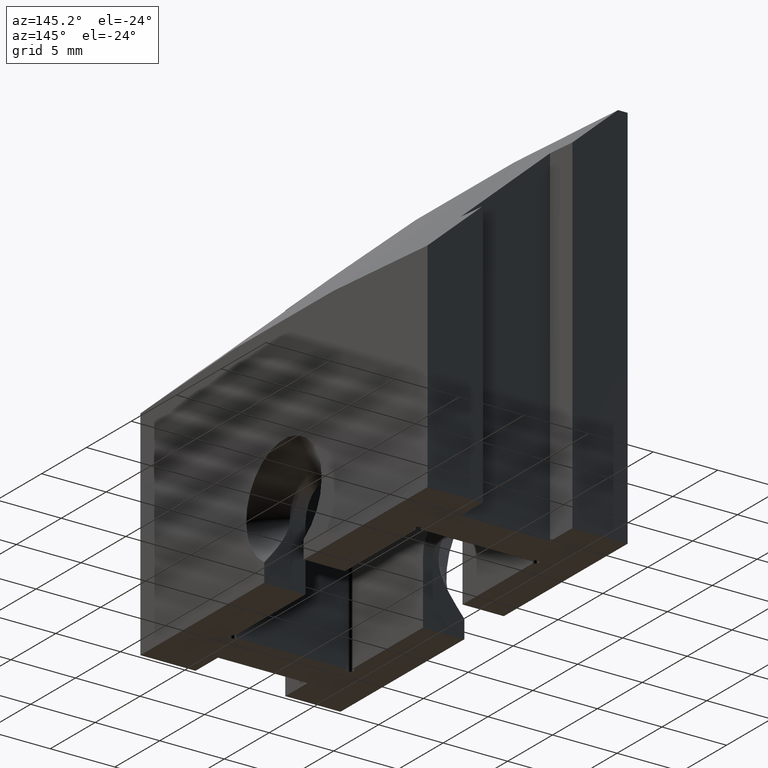
[diagram: clean part render]
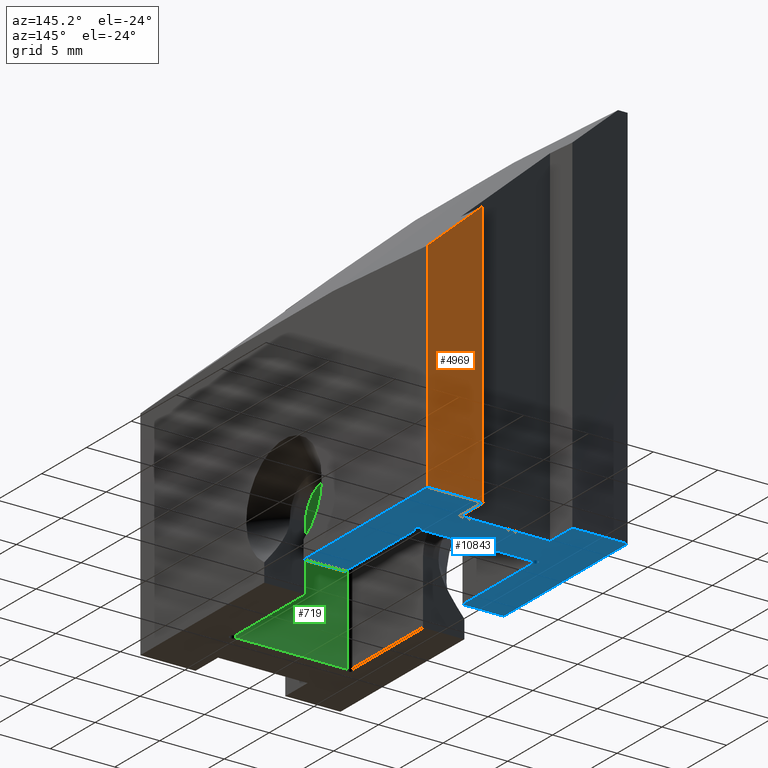
[diagram: same view with three faces highlighted in distinct colors, each labeled with its STEP entity id]
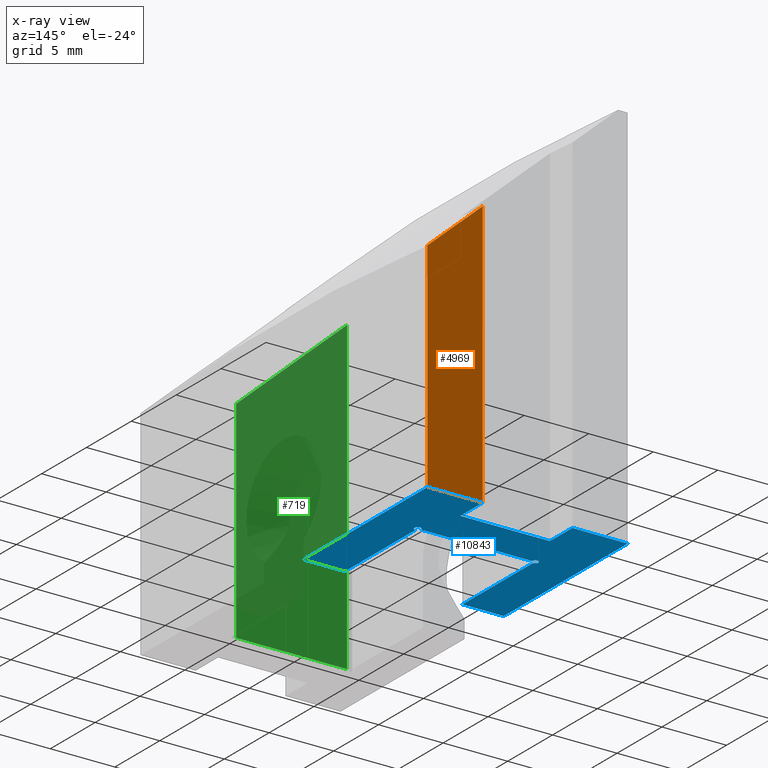
[diagram: x-ray of the same camera — body ghosted, the three highlighted faces saturated]
A machine part, auxiliary view with three faces highlighted in distinct colors.
The next image is the same camera in x-ray (body ghosted, the three faces saturated) — at least one of them is partly hidden behind the body in this view.
Their STEP definitions:

[orange] entity #4969 — the highlighted planar face has unit normal (0, -1, 0).
#380 = CARTESIAN_POINT ( 'NONE',  ( -7.417642377202334991, 15.99999999999999289, 15.37224053753339348 ) ) ;
#438 = VERTEX_POINT ( 'NONE', #8929 ) ;
#600 = EDGE_LOOP ( 'NONE', ( #1476, #1067, #12914, #6607 ) ) ;
#1067 = ORIENTED_EDGE ( 'NONE', *, *, #6052, .T. ) ;
#1431 = DIRECTION ( 'NONE',  ( 0.7459376616259146831, 0.000000000000000000, -0.6660157693088524233 ) ) ;
#1476 = ORIENTED_EDGE ( 'NONE', *, *, #10378, .F. ) ;
#1754 = DIRECTION ( 'NONE',  ( 0.000000000000000000, -1.000000000000000000, 0.000000000000000000 ) ) ;
#2425 = CARTESIAN_POINT ( 'NONE',  ( 3.475000000000000089, 15.99999999999999289, 5.646666986459878856 ) ) ;
#3079 = VERTEX_POINT ( 'NONE', #8599 ) ;
#3126 = FACE_OUTER_BOUND ( 'NONE', #600, .T. ) ;
#3501 = VECTOR ( 'NONE', #6237, 1000.000000000000000 ) ;
#3789 = CARTESIAN_POINT ( 'NONE',  ( 3.474999999999998757, 16.00000000000000000, -15.00000000000000000 ) ) ;
#3928 = VECTOR ( 'NONE', #10612, 1000.000000000000000 ) ;
#4969 = ADVANCED_FACE ( 'NONE', ( #3126 ), #13048, .F. ) ;
#5105 = LINE ( 'NONE', #5517, #3501 ) ;
#5517 = CARTESIAN_POINT ( 'NONE',  ( 3.474999999999998757, 16.00000000000000000, 15.00000000000000000 ) ) ;
#6052 = EDGE_CURVE ( 'NONE', #10368, #438, #13089, .T. ) ;
#6130 = EDGE_CURVE ( 'NONE', #3079, #7569, #11148, .T. ) ;
#6237 = DIRECTION ( 'NONE',  ( -0.000000000000000000, -0.000000000000000000, -1.000000000000000000 ) ) ;
#6607 = ORIENTED_EDGE ( 'NONE', *, *, #6130, .T. ) ;
#7569 = VERTEX_POINT ( 'NONE', #3789 ) ;
#7855 = CARTESIAN_POINT ( 'NONE',  ( 3.474999999999998757, 16.00000000000000000, 15.00000000000000000 ) ) ;
#7942 = DIRECTION ( 'NONE',  ( 0.000000000000000000, -0.000000000000000000, -1.000000000000000000 ) ) ;
#7974 = AXIS2_PLACEMENT_3D ( 'NONE', #7855, #1754, #7942 ) ;
#8099 = VECTOR ( 'NONE', #1431, 1000.000000000000000 ) ;
#8454 = LINE ( 'NONE', #12830, #3928 ) ;
#8599 = CARTESIAN_POINT ( 'NONE',  ( 7.750000000000000000, 16.00000000000000000, -15.00000000000000000 ) ) ;
#8929 = CARTESIAN_POINT ( 'NONE',  ( 7.749999999999999112, 15.99999999999999289, 1.829702700745594157 ) ) ;
#9042 = DIRECTION ( 'NONE',  ( -1.000000000000000000, -0.000000000000000000, -0.000000000000000000 ) ) ;
#9223 = VECTOR ( 'NONE', #9042, 1000.000000000000000 ) ;
#10368 = VERTEX_POINT ( 'NONE', #2425 ) ;
#10378 = EDGE_CURVE ( 'NONE', #10368, #7569, #5105, .T. ) ;
#10612 = DIRECTION ( 'NONE',  ( -0.000000000000000000, -0.000000000000000000, -1.000000000000000000 ) ) ;
#11148 = LINE ( 'NONE', #13181, #9223 ) ;
#12830 = CARTESIAN_POINT ( 'NONE',  ( 7.750000000000000000, 16.00000000000000000, 15.00000000000000000 ) ) ;
#12914 = ORIENTED_EDGE ( 'NONE', *, *, #13084, .T. ) ;
#13048 = PLANE ( 'NONE',  #7974 ) ;
#13084 = EDGE_CURVE ( 'NONE', #438, #3079, #8454, .T. ) ;
#13089 = LINE ( 'NONE', #380, #8099 ) ;
#13181 = CARTESIAN_POINT ( 'NONE',  ( 3.474999999999998757, 16.00000000000000000, -15.00000000000000000 ) ) ;

[blue] entity #10843 — the highlighted planar face has unit normal (0, 0, -1).
#142 = CARTESIAN_POINT ( 'NONE',  ( 3.475000000000000089, 13.50000000000000000, -15.00000000000000000 ) ) ;
#270 = LINE ( 'NONE', #3435, #6838 ) ;
#299 = VECTOR ( 'NONE', #3602, 1000.000000000000000 ) ;
#368 = EDGE_CURVE ( 'NONE', #12257, #12675, #8194, .T. ) ;
#817 = VECTOR ( 'NONE', #2859, 1000.000000000000000 ) ;
#826 = VERTEX_POINT ( 'NONE', #6392 ) ;
#893 = FACE_OUTER_BOUND ( 'NONE', #12456, .T. ) ;
#955 = DIRECTION ( 'NONE',  ( 0.000000000000000000, 0.000000000000000000, -1.000000000000000000 ) ) ;
#1114 = DIRECTION ( 'NONE',  ( -1.000000000000000000, 0.000000000000000000, 0.000000000000000000 ) ) ;
#1534 = AXIS2_PLACEMENT_3D ( 'NONE', #2985, #955, #7158 ) ;
#1577 = CARTESIAN_POINT ( 'NONE',  ( -7.750000000000000000, 2.200000000000000178, -15.00000000000000000 ) ) ;
#1627 = VERTEX_POINT ( 'NONE', #4465 ) ;
#1746 = EDGE_CURVE ( 'NONE', #9680, #1627, #7551, .T. ) ;
#1800 = ORIENTED_EDGE ( 'NONE', *, *, #1746, .T. ) ;
#2240 = DIRECTION ( 'NONE',  ( 0.000000000000000000, 0.000000000000000000, -1.000000000000000000 ) ) ;
#2248 = CARTESIAN_POINT ( 'NONE',  ( -4.800000000000000711, 10.30000000000000071, -15.00000000000000000 ) ) ;
#2324 = CARTESIAN_POINT ( 'NONE',  ( -4.299999999999999822, 10.30000000000000071, -15.00000000000000000 ) ) ;
#2566 = CARTESIAN_POINT ( 'NONE',  ( -7.750000000000000000, 16.00000000000000000, -15.00000000000000000 ) ) ;
#2603 = EDGE_CURVE ( 'NONE', #4680, #8130, #3343, .T. ) ;
#2746 = ORIENTED_EDGE ( 'NONE', *, *, #4443, .F. ) ;
#2859 = DIRECTION ( 'NONE',  ( -1.000000000000000000, -0.000000000000000000, -0.000000000000000000 ) ) ;
#2926 = EDGE_CURVE ( 'NONE', #13322, #4680, #4936, .T. ) ;
#2985 = CARTESIAN_POINT ( 'NONE',  ( -4.549999999999999822, 10.30000000000000071, -15.00000000000000000 ) ) ;
#3079 = VERTEX_POINT ( 'NONE', #8599 ) ;
#3093 = ORIENTED_EDGE ( 'NONE', *, *, #13046, .F. ) ;
#3319 = DIRECTION ( 'NONE',  ( -1.000000000000000000, 0.000000000000000000, 0.000000000000000000 ) ) ;
#3343 = LINE ( 'NONE', #3790, #9306 ) ;
#3435 = CARTESIAN_POINT ( 'NONE',  ( 7.750000000000000000, 2.200000000000000178, -15.00000000000000000 ) ) ;
#3535 = ORIENTED_EDGE ( 'NONE', *, *, #2603, .T. ) ;
#3602 = DIRECTION ( 'NONE',  ( -1.000000000000000000, -0.000000000000000000, -0.000000000000000000 ) ) ;
#3610 = VECTOR ( 'NONE', #12646, 1000.000000000000000 ) ;
#3714 = AXIS2_PLACEMENT_3D ( 'NONE', #11435, #2240, #1114 ) ;
#3789 = CARTESIAN_POINT ( 'NONE',  ( 3.474999999999998757, 16.00000000000000000, -15.00000000000000000 ) ) ;
#3790 = CARTESIAN_POINT ( 'NONE',  ( 4.549999999999999822, 0.000000000000000000, -15.00000000000000000 ) ) ;
#3832 = CARTESIAN_POINT ( 'NONE',  ( 3.475000000000000089, 13.50000000000000000, -15.00000000000000000 ) ) ;
#3887 = DIRECTION ( 'NONE',  ( 0.000000000000000000, 1.000000000000000000, 0.000000000000000000 ) ) ;
#3936 = CARTESIAN_POINT ( 'NONE',  ( -7.750000000000000000, -16.00000000000000000, -15.00000000000000000 ) ) ;
#4037 = ORIENTED_EDGE ( 'NONE', *, *, #10740, .T. ) ;
#4080 = DIRECTION ( 'NONE',  ( -0.000000000000000000, -1.000000000000000000, -0.000000000000000000 ) ) ;
#4264 = CARTESIAN_POINT ( 'NONE',  ( 0.000000000000000000, 10.30000000000000071, -15.00000000000000000 ) ) ;
#4311 = AXIS2_PLACEMENT_3D ( 'NONE', #5414, #12648, #4576 ) ;
#4443 = EDGE_CURVE ( 'NONE', #7569, #8674, #9603, .T. ) ;
#4465 = CARTESIAN_POINT ( 'NONE',  ( -4.549999999999999822, 2.200000000000000178, -15.00000000000000000 ) ) ;
#4576 = DIRECTION ( 'NONE',  ( -1.000000000000000000, 0.000000000000000000, -0.000000000000000000 ) ) ;
#4680 = VERTEX_POINT ( 'NONE', #6772 ) ;
#4936 = LINE ( 'NONE', #12129, #10572 ) ;
#5031 = CARTESIAN_POINT ( 'NONE',  ( -3.474999999999999645, 16.00000000000000000, -15.00000000000000000 ) ) ;
#5299 = DIRECTION ( 'NONE',  ( 5.204170427930420297E-16, -1.000000000000000000, -0.000000000000000000 ) ) ;
#5320 = LINE ( 'NONE', #6795, #817 ) ;
#5414 = CARTESIAN_POINT ( 'NONE',  ( 0.000000000000000000, 0.000000000000000000, -15.00000000000000000 ) ) ;
#5631 = ORIENTED_EDGE ( 'NONE', *, *, #2926, .T. ) ;
#5680 = ORIENTED_EDGE ( 'NONE', *, *, #11213, .T. ) ;
#5824 = EDGE_CURVE ( 'NONE', #8674, #11561, #5320, .T. ) ;
#5875 = EDGE_CURVE ( 'NONE', #10693, #13190, #10039, .T. ) ;
#5912 = CARTESIAN_POINT ( 'NONE',  ( -4.549999999999999822, 10.30000000000000071, -15.00000000000000000 ) ) ;
#5949 = ORIENTED_EDGE ( 'NONE', *, *, #5875, .F. ) ;
#5954 = CARTESIAN_POINT ( 'NONE',  ( 7.750000000000000000, 2.200000000000000178, -15.00000000000000000 ) ) ;
#5979 = VECTOR ( 'NONE', #4080, 1000.000000000000000 ) ;
#5984 = DIRECTION ( 'NONE',  ( -1.000000000000000000, -0.000000000000000000, -0.000000000000000000 ) ) ;
#6130 = EDGE_CURVE ( 'NONE', #3079, #7569, #11148, .T. ) ;
#6392 = CARTESIAN_POINT ( 'NONE',  ( 4.299999999999999822, 10.30000000000000071, -15.00000000000000000 ) ) ;
#6578 = CARTESIAN_POINT ( 'NONE',  ( 7.750000000000000000, 16.00000000000000000, -15.00000000000000000 ) ) ;
#6710 = LINE ( 'NONE', #2566, #299 ) ;
#6772 = CARTESIAN_POINT ( 'NONE',  ( 4.549999999999999822, 2.200000000000000178, -15.00000000000000000 ) ) ;
#6795 = CARTESIAN_POINT ( 'NONE',  ( -3.475000000000000089, 13.50000000000000000, -15.00000000000000000 ) ) ;
#6838 = VECTOR ( 'NONE', #7493, 1000.000000000000000 ) ;
#7080 = DIRECTION ( 'NONE',  ( 0.000000000000000000, 0.000000000000000000, -1.000000000000000000 ) ) ;
#7158 = DIRECTION ( 'NONE',  ( -1.000000000000000000, 0.000000000000000000, 0.000000000000000000 ) ) ;
#7493 = DIRECTION ( 'NONE',  ( -1.000000000000000000, -0.000000000000000000, -0.000000000000000000 ) ) ;
#7495 = ORIENTED_EDGE ( 'NONE', *, *, #368, .F. ) ;
#7551 = LINE ( 'NONE', #12307, #8353 ) ;
#7569 = VERTEX_POINT ( 'NONE', #3789 ) ;
#7615 = CARTESIAN_POINT ( 'NONE',  ( -4.549999999999999822, 10.05000000000000071, -15.00000000000000000 ) ) ;
#7655 = CIRCLE ( 'NONE', #3714, 0.2500000000000002220 ) ;
#8007 = VECTOR ( 'NONE', #12386, 1000.000000000000000 ) ;
#8130 = VERTEX_POINT ( 'NONE', #8774 ) ;
#8194 = CIRCLE ( 'NONE', #1534, 0.2500000000000002220 ) ;
#8230 = EDGE_CURVE ( 'NONE', #9680, #12257, #13063, .T. ) ;
#8353 = VECTOR ( 'NONE', #8960, 1000.000000000000000 ) ;
#8430 = CARTESIAN_POINT ( 'NONE',  ( -3.475000000000000089, 13.50000000000000000, -15.00000000000000000 ) ) ;
#8599 = CARTESIAN_POINT ( 'NONE',  ( 7.750000000000000000, 16.00000000000000000, -15.00000000000000000 ) ) ;
#8667 = LINE ( 'NONE', #4264, #9307 ) ;
#8674 = VERTEX_POINT ( 'NONE', #3832 ) ;
#8774 = CARTESIAN_POINT ( 'NONE',  ( 4.549999999999999822, 10.05000000000000071, -15.00000000000000000 ) ) ;
#8960 = DIRECTION ( 'NONE',  ( 0.000000000000000000, -1.000000000000000000, 0.000000000000000000 ) ) ;
#9001 = DIRECTION ( 'NONE',  ( -1.000000000000000000, 0.000000000000000000, 0.000000000000000000 ) ) ;
#9042 = DIRECTION ( 'NONE',  ( -1.000000000000000000, -0.000000000000000000, -0.000000000000000000 ) ) ;
#9078 = EDGE_CURVE ( 'NONE', #12885, #10693, #6710, .T. ) ;
#9100 = LINE ( 'NONE', #6578, #3610 ) ;
#9223 = VECTOR ( 'NONE', #9042, 1000.000000000000000 ) ;
#9306 = VECTOR ( 'NONE', #3887, 1000.000000000000000 ) ;
#9307 = VECTOR ( 'NONE', #3319, 1000.000000000000000 ) ;
#9373 = CARTESIAN_POINT ( 'NONE',  ( -7.750000000000000000, 16.00000000000000000, -15.00000000000000000 ) ) ;
#9551 = PLANE ( 'NONE',  #4311 ) ;
#9603 = LINE ( 'NONE', #142, #11682 ) ;
#9680 = VERTEX_POINT ( 'NONE', #7615 ) ;
#9950 = LINE ( 'NONE', #5031, #8007 ) ;
#10039 = LINE ( 'NONE', #3936, #5979 ) ;
#10276 = ORIENTED_EDGE ( 'NONE', *, *, #12437, .F. ) ;
#10549 = ORIENTED_EDGE ( 'NONE', *, *, #8230, .F. ) ;
#10572 = VECTOR ( 'NONE', #5984, 1000.000000000000000 ) ;
#10626 = EDGE_CURVE ( 'NONE', #11561, #12885, #9950, .T. ) ;
#10693 = VERTEX_POINT ( 'NONE', #9373 ) ;
#10740 = EDGE_CURVE ( 'NONE', #826, #12675, #8667, .T. ) ;
#10796 = ORIENTED_EDGE ( 'NONE', *, *, #10626, .F. ) ;
#10843 = ADVANCED_FACE ( 'NONE', ( #893 ), #9551, .T. ) ;
#11104 = ORIENTED_EDGE ( 'NONE', *, *, #9078, .F. ) ;
#11116 = CARTESIAN_POINT ( 'NONE',  ( -3.474999999999999645, 16.00000000000000000, -15.00000000000000000 ) ) ;
#11148 = LINE ( 'NONE', #13181, #9223 ) ;
#11213 = EDGE_CURVE ( 'NONE', #1627, #13190, #270, .T. ) ;
#11264 = ORIENTED_EDGE ( 'NONE', *, *, #6130, .F. ) ;
#11435 = CARTESIAN_POINT ( 'NONE',  ( 4.549999999999999822, 10.30000000000000071, -15.00000000000000000 ) ) ;
#11561 = VERTEX_POINT ( 'NONE', #8430 ) ;
#11682 = VECTOR ( 'NONE', #5299, 1000.000000000000000 ) ;
#11957 = AXIS2_PLACEMENT_3D ( 'NONE', #5912, #7080, #9001 ) ;
#12129 = CARTESIAN_POINT ( 'NONE',  ( 7.750000000000000000, 2.200000000000000178, -15.00000000000000000 ) ) ;
#12159 = ORIENTED_EDGE ( 'NONE', *, *, #5824, .F. ) ;
#12257 = VERTEX_POINT ( 'NONE', #2248 ) ;
#12307 = CARTESIAN_POINT ( 'NONE',  ( -4.549999999999999822, 0.000000000000000000, -15.00000000000000000 ) ) ;
#12386 = DIRECTION ( 'NONE',  ( 1.734723475976806848E-16, 1.000000000000000000, -0.000000000000000000 ) ) ;
#12437 = EDGE_CURVE ( 'NONE', #826, #8130, #7655, .T. ) ;
#12456 = EDGE_LOOP ( 'NONE', ( #5680, #5949, #11104, #10796, #12159, #2746, #11264, #3093, #5631, #3535, #10276, #4037, #7495, #10549, #1800 ) ) ;
#12646 = DIRECTION ( 'NONE',  ( -0.000000000000000000, 1.000000000000000000, -0.000000000000000000 ) ) ;
#12648 = DIRECTION ( 'NONE',  ( 0.000000000000000000, 0.000000000000000000, -1.000000000000000000 ) ) ;
#12675 = VERTEX_POINT ( 'NONE', #2324 ) ;
#12885 = VERTEX_POINT ( 'NONE', #11116 ) ;
#13046 = EDGE_CURVE ( 'NONE', #13322, #3079, #9100, .T. ) ;
#13063 = CIRCLE ( 'NONE', #11957, 0.2500000000000002220 ) ;
#13181 = CARTESIAN_POINT ( 'NONE',  ( 3.474999999999998757, 16.00000000000000000, -15.00000000000000000 ) ) ;
#13190 = VERTEX_POINT ( 'NONE', #1577 ) ;
#13322 = VERTEX_POINT ( 'NONE', #5954 ) ;

[green] entity #719 — the highlighted planar face has unit normal (0, 1, -0).
#5 = VERTEX_POINT ( 'NONE', #10188 ) ;
#626 = VERTEX_POINT ( 'NONE', #10287 ) ;
#719 = ADVANCED_FACE ( 'NONE', ( #10438 ), #1533, .T. ) ;
#1510 = DIRECTION ( 'NONE',  ( -0.7459376616259146831, 0.000000000000000000, 0.6660157693088524233 ) ) ;
#1533 = PLANE ( 'NONE',  #11924 ) ;
#2051 = CARTESIAN_POINT ( 'NONE',  ( -4.299999999999999822, -10.30000000000000071, -15.00000000000000000 ) ) ;
#2628 = CARTESIAN_POINT ( 'NONE',  ( 3.475000000000003642, -10.30000000000000071, 15.00000000000000000 ) ) ;
#2699 = ORIENTED_EDGE ( 'NONE', *, *, #3280, .F. ) ;
#2726 = DIRECTION ( 'NONE',  ( 0.000000000000000000, 1.000000000000000000, -0.000000000000000000 ) ) ;
#2944 = VERTEX_POINT ( 'NONE', #2051 ) ;
#3253 = ORIENTED_EDGE ( 'NONE', *, *, #6626, .F. ) ;
#3280 = EDGE_CURVE ( 'NONE', #2944, #9128, #8171, .T. ) ;
#3401 = LINE ( 'NONE', #6771, #10955 ) ;
#3568 = DIRECTION ( 'NONE',  ( -0.000000000000000000, -0.000000000000000000, -1.000000000000000000 ) ) ;
#4164 = ORIENTED_EDGE ( 'NONE', *, *, #6577, .F. ) ;
#5090 = VECTOR ( 'NONE', #12358, 1000.000000000000000 ) ;
#5583 = LINE ( 'NONE', #8410, #7704 ) ;
#5621 = CARTESIAN_POINT ( 'NONE',  ( -4.299999999999999822, -10.30000000000000071, 10.01976529822172779 ) ) ;
#6577 = EDGE_CURVE ( 'NONE', #626, #5, #3401, .T. ) ;
#6626 = EDGE_CURVE ( 'NONE', #5, #2944, #12595, .T. ) ;
#6713 = DIRECTION ( 'NONE',  ( 0.000000000000000000, 0.000000000000000000, 1.000000000000000000 ) ) ;
#6771 = CARTESIAN_POINT ( 'NONE',  ( -2.970036835102731754, -10.30000000000000071, 7.781558744684934581 ) ) ;
#7704 = VECTOR ( 'NONE', #11408, 1000.000000000000000 ) ;
#8171 = LINE ( 'NONE', #12172, #5090 ) ;
#8410 = CARTESIAN_POINT ( 'NONE',  ( 4.299999999999999822, -10.30000000000000071, 10.01976529822172779 ) ) ;
#9128 = VERTEX_POINT ( 'NONE', #11803 ) ;
#9907 = EDGE_CURVE ( 'NONE', #9128, #626, #5583, .T. ) ;
#10188 = CARTESIAN_POINT ( 'NONE',  ( -4.299999999999999822, -10.30000000000000071, 8.969025856200349978 ) ) ;
#10287 = CARTESIAN_POINT ( 'NONE',  ( 4.299999999999999822, -10.30000000000000071, 1.290454427628924483 ) ) ;
#10438 = FACE_OUTER_BOUND ( 'NONE', #10838, .T. ) ;
#10494 = VECTOR ( 'NONE', #3568, 1000.000000000000000 ) ;
#10838 = EDGE_LOOP ( 'NONE', ( #11706, #2699, #3253, #4164 ) ) ;
#10955 = VECTOR ( 'NONE', #1510, 999.9999999999998863 ) ;
#11408 = DIRECTION ( 'NONE',  ( 0.000000000000000000, 0.000000000000000000, 1.000000000000000000 ) ) ;
#11706 = ORIENTED_EDGE ( 'NONE', *, *, #9907, .F. ) ;
#11803 = CARTESIAN_POINT ( 'NONE',  ( 4.299999999999999822, -10.30000000000000071, -15.00000000000000000 ) ) ;
#11924 = AXIS2_PLACEMENT_3D ( 'NONE', #2628, #2726, #6713 ) ;
#12172 = CARTESIAN_POINT ( 'NONE',  ( 0.000000000000000000, -10.30000000000000071, -15.00000000000000000 ) ) ;
#12358 = DIRECTION ( 'NONE',  ( 1.000000000000000000, 0.000000000000000000, 0.000000000000000000 ) ) ;
#12595 = LINE ( 'NONE', #5621, #10494 ) ;